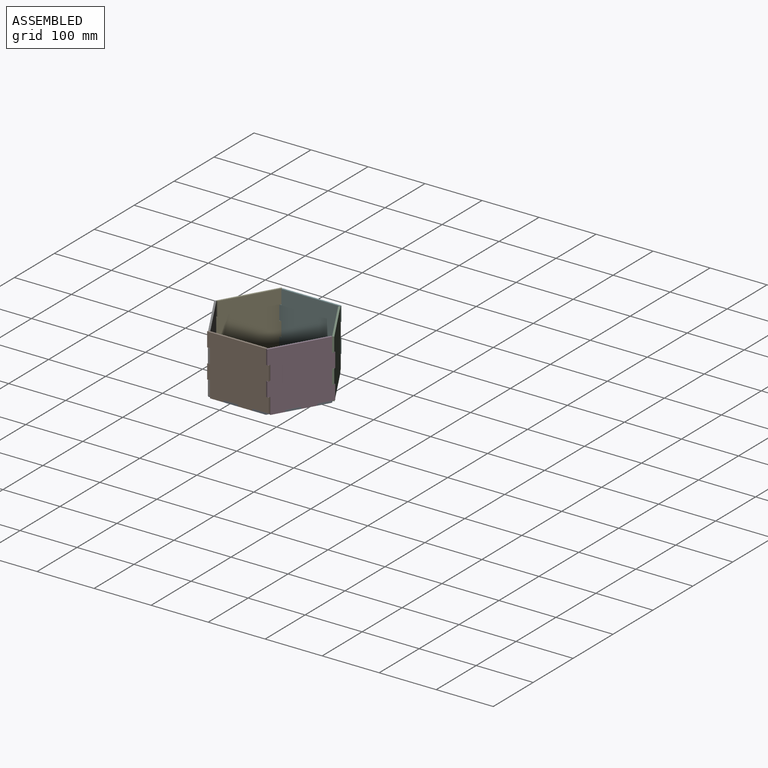
[diagram: assembled view]
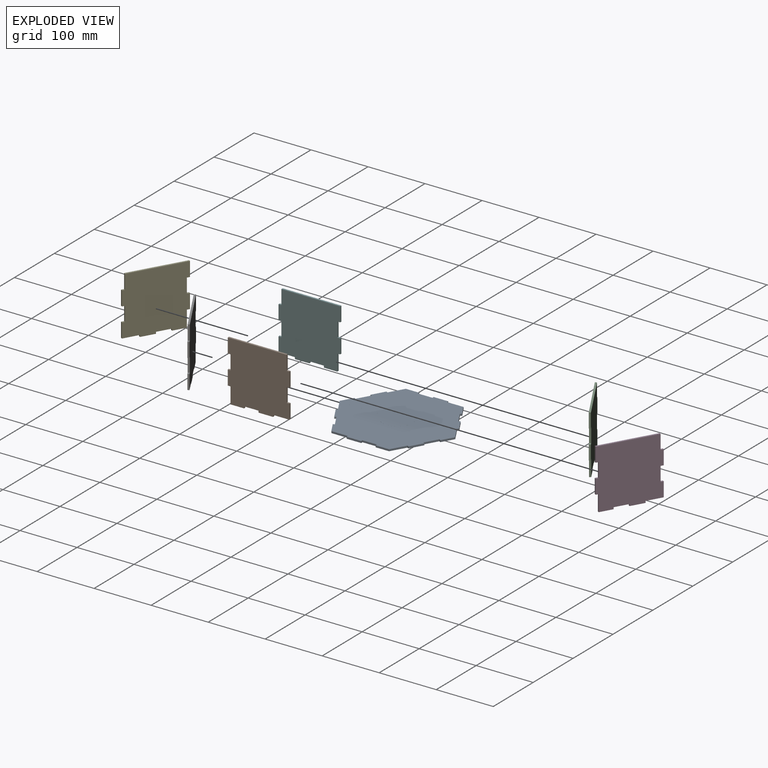
[diagram: exploded view]
GUIDED TOUR — MATED ASSEMBLY (Onshape document 285316537b2efaf649c92a9d, AutoMate assembly 285316537b2efaf649c92a9d_94ba9fda9ff590029603082b_050c9651dec1192bfa84865f_default)

This assembly has 7 components, labeled P0..P6 below (a component is one placed occurrence of a part; the same part can appear more than once), held together by 1 mate. A mate is a constraint between two components; its type names the relative motion it leaves free:
  FASTENED — locks the two components together rigidly (no relative motion).
Axis/direction vectors are unit vectors and 'through' points are millimeter coordinates, both in the assembly's world frame.

MATES
  1. FASTENED "Fastened 1": P0 <-> P5, direction (1.000, 0.002, 0.000) through (7.34, 96.08, -0.47) mm

ASSEMBLY ORDER
  1. P5 — the base component [order verified]
  2. P1 [order verified]
  3. P0 [order verified]
  4. P2 [order verified]
  5. P3 [order verified]
  6. P6 [order verified]
  7. P4 [order verified]
Order-tag legend:
  [order verified] — this step's position reverses a verified removal order: the component was checked to insert without passing through the ones already placed.

Of the 7 components, 1 carries the full construction recipe — the FeatureScript program that regenerates the part's solid from scratch; the rest are supplied as boundary geometry only.
Each toured component is shown spotlighted twice — in the assembled view, then in the exploded view, where a leader line traces a displaced component back to its assembled socket (saturated green if recipe-attached, orange if geometry-only; every other component desaturated gray) — followed by its recipe or geometry summary and the mates that hold it.
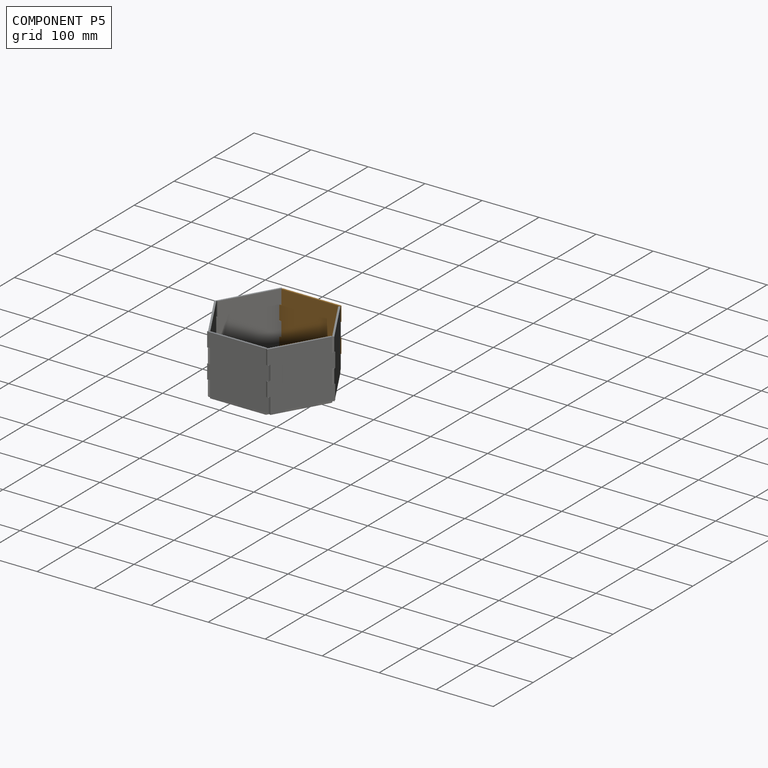
[diagram: component P5 — assembled]
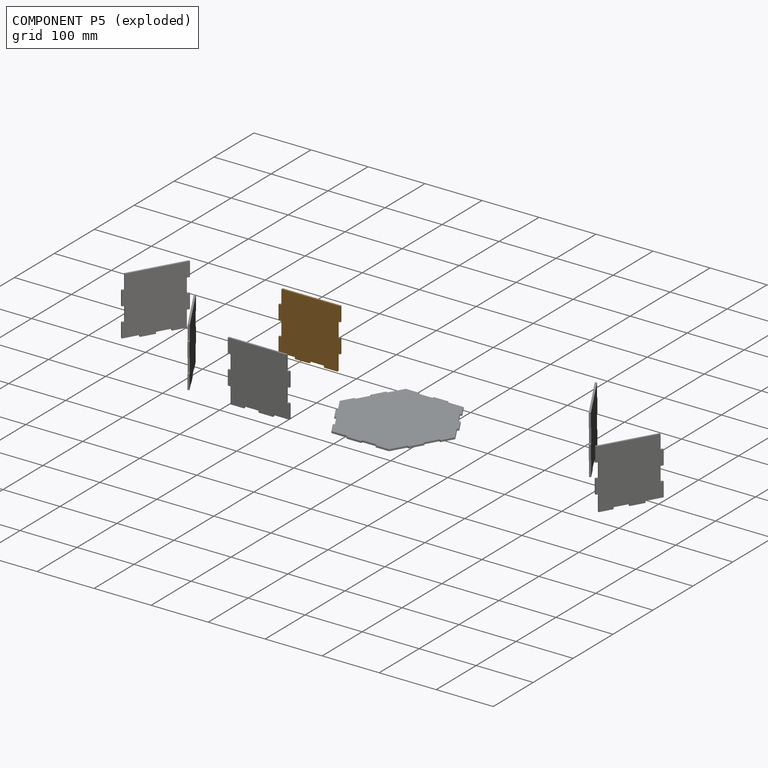
[diagram: component P5 — exploded]
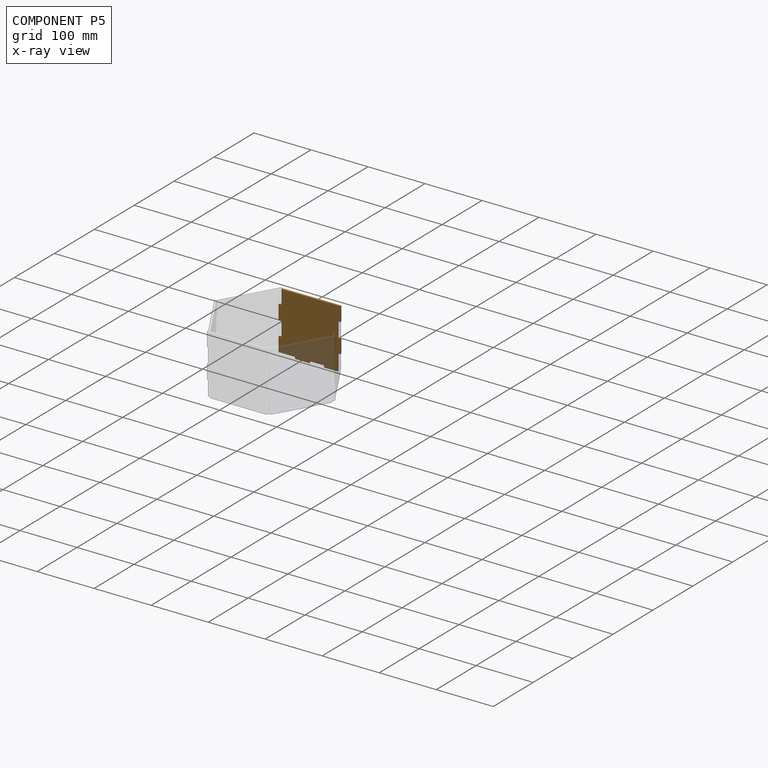
[diagram: component P5 — x-ray view]
COMPONENT P5 — geometry summary (no construction recipe available for this part):
  bounding box: 108.0 x 104.8 x 3.2 mm
  B-rep topology: 1 solid, 24 faces, 132 edges
  volume: 33719 mm^3 (94% of its bounding box)
  symmetry: mirror-symmetric across its y mid-plane
Held by: FASTENED mate "Fastened 1" to P0.
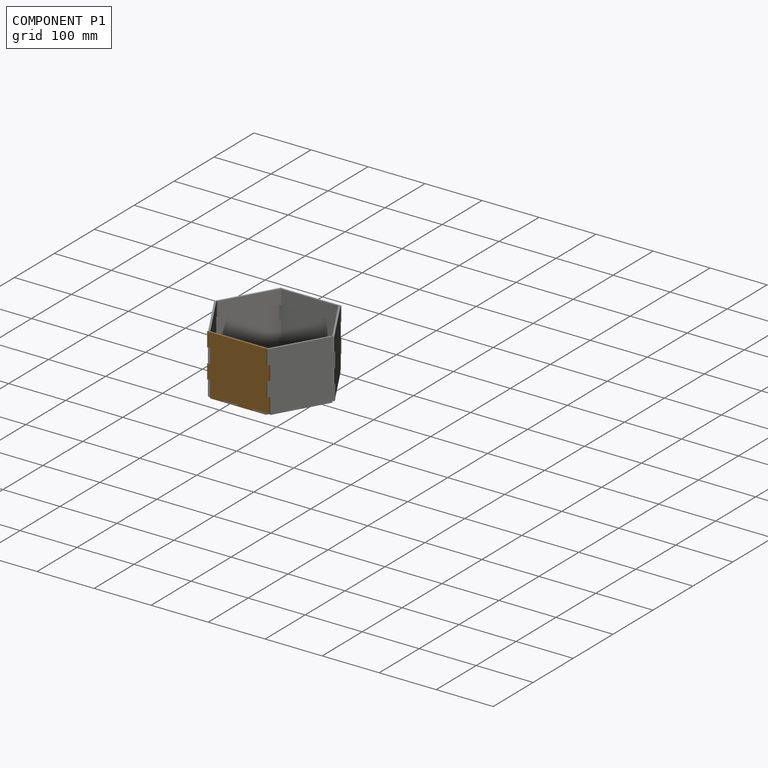
[diagram: component P1 — assembled]
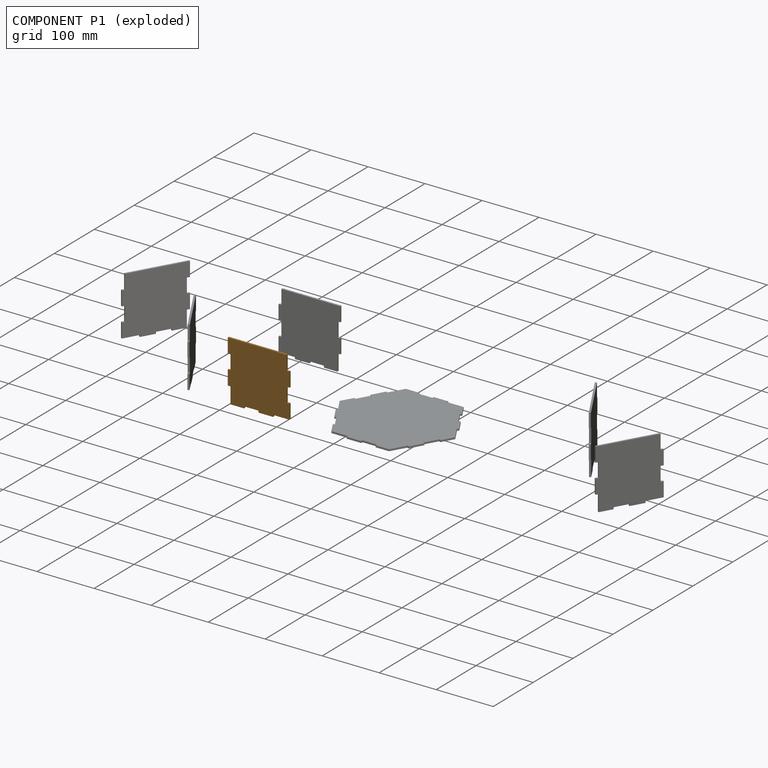
[diagram: component P1 — exploded]
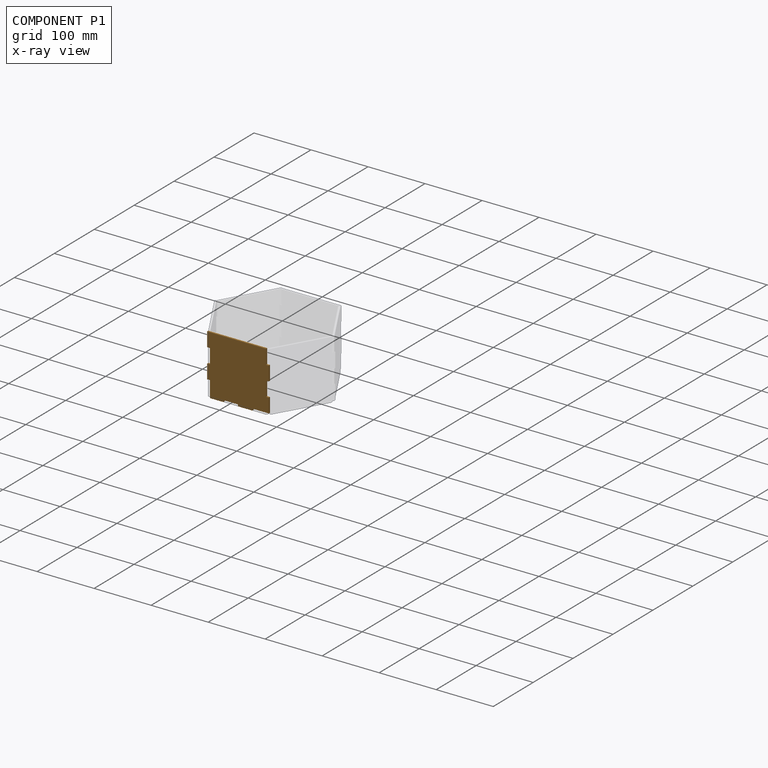
[diagram: component P1 — x-ray view]
COMPONENT P1 — geometry summary (no construction recipe available for this part):
  bounding box: 108.0 x 104.8 x 3.2 mm
  B-rep topology: 1 solid, 24 faces, 132 edges
  volume: 33719 mm^3 (94% of its bounding box)
  symmetry: mirror-symmetric across its y mid-plane
Held by: no mates (free).
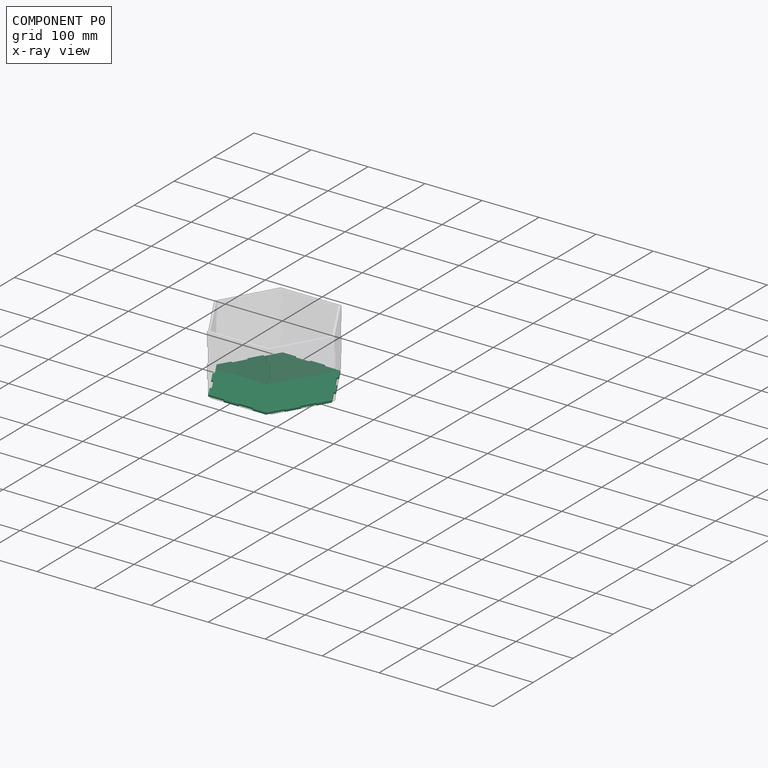
[diagram: component P0 — x-ray view]
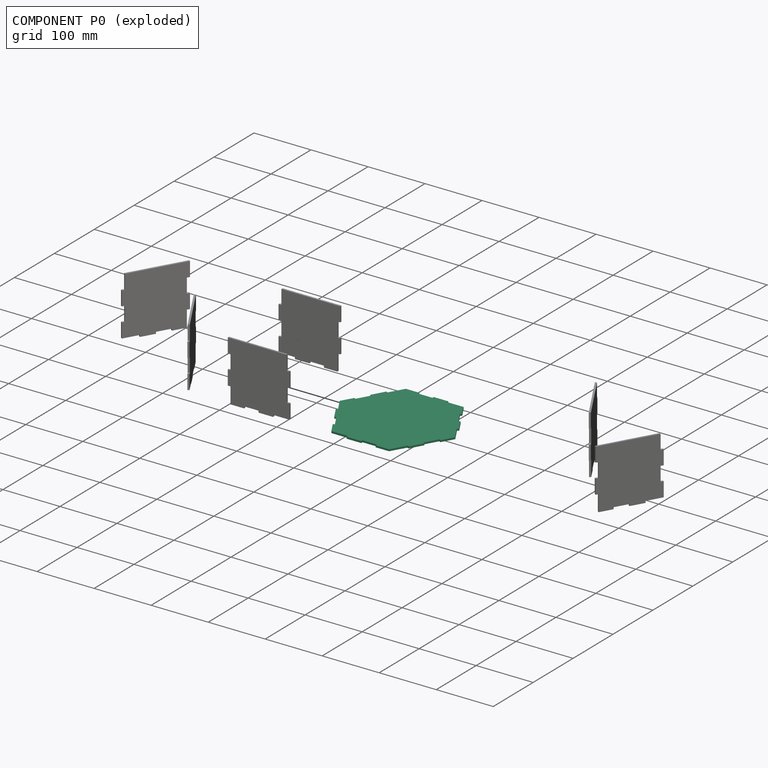
[diagram: component P0 — exploded]
COMPONENT P0 — recipe-attached (CADFS 00275172, mesh-verified: the recipe's output STEP matches this component's geometry to below the mesh-comparison resolution (tessellation chordal tolerance ~0.414 mm)).
Held by: FASTENED mate "Fastened 1" to P5.
Construction recipe (FeatureScript — the CAD program that rebuilds this solid; sketch coordinates are in the units given by the * unit suffixes, e.g. mm):

FeatureScript 1511;
import(path : "onshape/std/geometry.fs", version : "1511.0");
import(path : "onshape/std/common.fs", version : "1511.0");
const mm = millimeter;
const VERTEX = EntityType.VERTEX;
const EDGE = EntityType.EDGE;
const FACE = EntityType.FACE;
const BODY = EntityType.BODY;
function v(x, y){return vector(x, y);}
function OD(order){return orderDisambiguation(order);}
function OSD(set){return originalSetDisambiguation(set);}
function TD(topology){return topologyDisambiguation(topology);}
function TDD(query){return trueDependencyDisambiguation(query);}
function sQuery(a, b, c) {return sketchEntityQuery(a, b, c);}

annotation { "Feature Type Name" : "Feature", "Feature Type Description" : "" }
export const myFeature = defineFeature(function(context is Context, id is Id, definition is map)
    precondition{}
    {
        {
            var Q0;
            Q0=qCreatedBy(makeId("Top.planeOp"),FACE);
            var sketch = newSketch(context, id + "F0", { "sketchPlane" : qUnion([Q0])});
            skCircle(sketch, "E0.cCircle", {"center": v(0, 0) * mm, "radius": 87.99 * mm, "construction": true});
            skLineSegment(sketch, "E0.0", {"start": v(50.64, 88.08) * mm, "end": v(101.6, 0.19) * mm});
            skLineSegment(sketch, "E0.1", {"start": v(101.6, 0.19) * mm, "end": v(50.96, -87.9) * mm});
            skLineSegment(sketch, "E0.2", {"start": v(50.96, -87.9) * mm, "end": v(-50.64, -88.08) * mm});
            skLineSegment(sketch, "E0.3", {"start": v(-50.64, -88.08) * mm, "end": v(-101.6, -0.19) * mm});
            skLineSegment(sketch, "E0.4", {"start": v(-101.6, -0.19) * mm, "end": v(-50.96, 87.9) * mm});
            skLineSegment(sketch, "E0.5", {"start": v(-50.96, 87.9) * mm, "end": v(50.64, 88.08) * mm});
            skPoint(sketch, "E0.0.midPoint", {"position": v(76.12, 44.13) * mm});
            skLineSegment(sketch, "E1.0", {"start": v(-103.44, 2.99) * mm, "end": v(-47.12, 100.94) * mm, "construction": true});
            skLineSegment(sketch, "E2", {"start": v(-103.44, 2.99) * mm, "end": v(-91.7, 23.42) * mm});
            skLineSegment(sketch, "E3", {"start": v(-91.7, 23.42) * mm, "end": v(-88.94, 21.83) * mm});
            skLineSegment(sketch, "E4", {"start": v(-76.28, 43.85) * mm, "end": v(-79.03, 45.44) * mm});
            skLineSegment(sketch, "E5", {"start": v(-79.03, 45.44) * mm, "end": v(-66.37, 67.46) * mm});
            skLineSegment(sketch, "E6", {"start": v(-66.37, 67.46) * mm, "end": v(-63.62, 65.88) * mm});
            skLineSegment(sketch, "E7.1.0", {"start": v(-66.13, -67.7) * mm, "end": v(-63.38, -66.1) * mm});
            skLineSegment(sketch, "E7.1.1", {"start": v(-54.3, -88.09) * mm, "end": v(-66.13, -67.7) * mm});
            skLineSegment(sketch, "E7.1.3", {"start": v(-76.12, -44.13) * mm, "end": v(-78.87, -45.73) * mm});
            skLineSegment(sketch, "E7.1.4", {"start": v(-78.87, -45.73) * mm, "end": v(-91.6, -23.75) * mm});
            skLineSegment(sketch, "E7.1.5", {"start": v(-91.6, -23.75) * mm, "end": v(-88.86, -22.16) * mm});
            skLineSegment(sketch, "E7.2.0", {"start": v(25.57, -91.12) * mm, "end": v(25.56, -87.94) * mm});
            skLineSegment(sketch, "E7.2.1", {"start": v(49.13, -91.07) * mm, "end": v(25.57, -91.12) * mm});
            skLineSegment(sketch, "E7.2.3", {"start": v(0.16, -87.99) * mm, "end": v(0.17, -91.16) * mm});
            skLineSegment(sketch, "E7.2.4", {"start": v(0.17, -91.16) * mm, "end": v(-25.23, -91.2) * mm});
            skLineSegment(sketch, "E7.2.5", {"start": v(-25.23, -91.2) * mm, "end": v(-25.24, -88.03) * mm});
            skLineSegment(sketch, "E7.3.0", {"start": v(91.7, -23.42) * mm, "end": v(88.94, -21.83) * mm});
            skLineSegment(sketch, "E7.3.1", {"start": v(103.44, -2.99) * mm, "end": v(91.7, -23.42) * mm});
            skLineSegment(sketch, "E7.3.3", {"start": v(76.28, -43.85) * mm, "end": v(79.03, -45.44) * mm});
            skLineSegment(sketch, "E7.3.4", {"start": v(79.03, -45.44) * mm, "end": v(66.37, -67.46) * mm});
            skLineSegment(sketch, "E7.3.5", {"start": v(66.37, -67.46) * mm, "end": v(63.62, -65.88) * mm});
            skLineSegment(sketch, "E7.4.0", {"start": v(66.13, 67.7) * mm, "end": v(63.38, 66.1) * mm});
            skLineSegment(sketch, "E7.4.1", {"start": v(54.3, 88.09) * mm, "end": v(66.13, 67.7) * mm});
            skLineSegment(sketch, "E7.4.3", {"start": v(76.12, 44.13) * mm, "end": v(78.87, 45.73) * mm});
            skLineSegment(sketch, "E7.4.4", {"start": v(78.87, 45.73) * mm, "end": v(91.6, 23.75) * mm});
            skLineSegment(sketch, "E7.4.5", {"start": v(91.6, 23.75) * mm, "end": v(88.86, 22.16) * mm});
            skLineSegment(sketch, "E7.5.0", {"start": v(-25.57, 91.12) * mm, "end": v(-25.56, 87.94) * mm});
            skLineSegment(sketch, "E7.5.1", {"start": v(-49.13, 91.07) * mm, "end": v(-25.57, 91.12) * mm});
            skLineSegment(sketch, "E7.5.3", {"start": v(-0.16, 87.99) * mm, "end": v(-0.17, 91.16) * mm});
            skLineSegment(sketch, "E7.5.4", {"start": v(-0.17, 91.16) * mm, "end": v(25.23, 91.2) * mm});
            skLineSegment(sketch, "E7.5.5", {"start": v(25.23, 91.2) * mm, "end": v(25.24, 88.03) * mm});
            skLineSegment(sketch, "E8", {"start": v(-101.6, -0.19) * mm, "end": v(-103.44, 2.99) * mm});
            skPoint(sketch, "E9.orphan", {"position": v(-104.35, 1.4) * mm});
            skLineSegment(sketch, "E10.1.0", {"start": v(-50.64, -88.08) * mm, "end": v(-54.3, -88.09) * mm});
            skLineSegment(sketch, "E10.2.0", {"start": v(50.96, -87.9) * mm, "end": v(49.13, -91.07) * mm});
            skLineSegment(sketch, "E10.3.0", {"start": v(101.6, 0.19) * mm, "end": v(103.44, -2.99) * mm});
            skLineSegment(sketch, "E10.4.0", {"start": v(50.64, 88.08) * mm, "end": v(54.3, 88.09) * mm});
            skLineSegment(sketch, "E10.5.0", {"start": v(-50.96, 87.9) * mm, "end": v(-49.13, 91.07) * mm});
            skPoint(sketch, "E11.orphan", {"position": v(-50.97, 91.07) * mm});
            skPoint(sketch, "E12.orphan", {"position": v(104.35, -1.4) * mm});
            skPoint(sketch, "E13.orphan", {"position": v(50.97, -91.07) * mm});
            skPoint(sketch, "E14.orphan", {"position": v(-53.39, -89.67) * mm});
            skSolve(sketch);
        }
        {
            var Q0;
            {var subQ18=sQuery(id+"F0.wireOp",EDGE,"E0.0");var subQ26=makeQuery(id+"F0.imprint","INTERSECT",VERTEX,{"derivedFrom":[subQ18,sQuery(id+"F0.wireOp",EDGE,"E7.4.0")]});Q0=makeQuery(id+"F0.imprint","IMPRINT",FACE,{"disambiguationData":[TD([[makeQuery(id+"F0.imprint","IMPRINT",EDGE,{"disambiguationData":[TD([[subQ26,-1.0]])],"derivedFrom":subQ18}),-1.0]])]});}
            var Q1;
            {var subQ0=sQuery(id+"F0.wireOp",EDGE,"E4");Q1=makeQuery(id+"F0.imprint","IMPRINT",FACE,{"disambiguationData":[TD([[makeQuery(id+"F0.imprint","IMPRINT",EDGE,{"derivedFrom":subQ0}),-1.0]])]});}
            var Q2;
            Q2=makeQuery(id+"F0.imprint","IMPRINT",FACE,{"disambiguationData":[TD([[makeQuery(id+"F0.imprint","IMPRINT",EDGE,{"derivedFrom":sQuery(id+"F0.wireOp",EDGE,"E2")}),-1.0]])]});
            var Q3;
            {var subQ2=sQuery(id+"F0.wireOp",EDGE,"E7.5.0");Q3=makeQuery(id+"F0.imprint","IMPRINT",FACE,{"disambiguationData":[TD([[makeQuery(id+"F0.imprint","IMPRINT",EDGE,{"derivedFrom":subQ2}),-1.0]])]});}
            var Q4;
            {var subQ0=sQuery(id+"F0.wireOp",EDGE,"E7.5.3");Q4=makeQuery(id+"F0.imprint","IMPRINT",FACE,{"disambiguationData":[TD([[makeQuery(id+"F0.imprint","IMPRINT",EDGE,{"derivedFrom":subQ0}),-1.0]])]});}
            var Q5;
            {var subQ2=sQuery(id+"F0.wireOp",EDGE,"E7.4.0");Q5=makeQuery(id+"F0.imprint","IMPRINT",FACE,{"disambiguationData":[TD([[makeQuery(id+"F0.imprint","IMPRINT",EDGE,{"derivedFrom":subQ2}),-1.0]])]});}
            var Q6;
            {var subQ0=sQuery(id+"F0.wireOp",EDGE,"E7.4.3");Q6=makeQuery(id+"F0.imprint","IMPRINT",FACE,{"disambiguationData":[TD([[makeQuery(id+"F0.imprint","IMPRINT",EDGE,{"derivedFrom":subQ0}),-1.0]])]});}
            var Q7;
            {var subQ2=sQuery(id+"F0.wireOp",EDGE,"E7.3.0");Q7=makeQuery(id+"F0.imprint","IMPRINT",FACE,{"disambiguationData":[TD([[makeQuery(id+"F0.imprint","IMPRINT",EDGE,{"derivedFrom":subQ2}),-1.0]])]});}
            var Q8;
            {var subQ0=sQuery(id+"F0.wireOp",EDGE,"E7.3.3");Q8=makeQuery(id+"F0.imprint","IMPRINT",FACE,{"disambiguationData":[TD([[makeQuery(id+"F0.imprint","IMPRINT",EDGE,{"derivedFrom":subQ0}),-1.0]])]});}
            var Q9;
            {var subQ2=sQuery(id+"F0.wireOp",EDGE,"E7.2.0");Q9=makeQuery(id+"F0.imprint","IMPRINT",FACE,{"disambiguationData":[TD([[makeQuery(id+"F0.imprint","IMPRINT",EDGE,{"derivedFrom":subQ2}),-1.0]])]});}
            var Q10;
            {var subQ0=sQuery(id+"F0.wireOp",EDGE,"E7.2.3");Q10=makeQuery(id+"F0.imprint","IMPRINT",FACE,{"disambiguationData":[TD([[makeQuery(id+"F0.imprint","IMPRINT",EDGE,{"derivedFrom":subQ0}),-1.0]])]});}
            var Q11;
            {var subQ2=sQuery(id+"F0.wireOp",EDGE,"E7.1.0");Q11=makeQuery(id+"F0.imprint","IMPRINT",FACE,{"disambiguationData":[TD([[makeQuery(id+"F0.imprint","IMPRINT",EDGE,{"derivedFrom":subQ2}),-1.0]])]});}
            var Q12;
            {var subQ0=sQuery(id+"F0.wireOp",EDGE,"E7.1.3");Q12=makeQuery(id+"F0.imprint","IMPRINT",FACE,{"disambiguationData":[TD([[makeQuery(id+"F0.imprint","IMPRINT",EDGE,{"derivedFrom":subQ0}),-1.0]])]});}
            extrude(context, id + "F1", {"entities" : qUnion([Q0, Q1, Q2, Q3, Q4, Q5, Q6, Q7, Q8, Q9, Q10, Q11, Q12]), "depth" : 3.17 * mm});
        }
        {
            var Q0;
            Q0=makeQuery(id+"F1.opExtrude","CAP_FACE",FACE,{"disambiguationData":[OSD([sQuery(id+"F0.wireOp",EDGE,"E0.0"),sQuery(id+"F0.wireOp",EDGE,"E0.1"),sQuery(id+"F0.wireOp",EDGE,"E0.2"),sQuery(id+"F0.wireOp",EDGE,"E0.3"),sQuery(id+"F0.wireOp",EDGE,"E0.4"),sQuery(id+"F0.wireOp",EDGE,"E0.5"),sQuery(id+"F0.wireOp",EDGE,"E2"),sQuery(id+"F0.wireOp",EDGE,"E3"),sQuery(id+"F0.wireOp",EDGE,"E4"),sQuery(id+"F0.wireOp",EDGE,"E5"),sQuery(id+"F0.wireOp",EDGE,"E6"),sQuery(id+"F0.wireOp",EDGE,"E7.1.0"),sQuery(id+"F0.wireOp",EDGE,"E7.1.1"),sQuery(id+"F0.wireOp",EDGE,"E7.1.3"),sQuery(id+"F0.wireOp",EDGE,"E7.1.4"),sQuery(id+"F0.wireOp",EDGE,"E7.1.5"),sQuery(id+"F0.wireOp",EDGE,"E7.2.0"),sQuery(id+"F0.wireOp",EDGE,"E7.2.1"),sQuery(id+"F0.wireOp",EDGE,"E7.2.3"),sQuery(id+"F0.wireOp",EDGE,"E7.2.4"),sQuery(id+"F0.wireOp",EDGE,"E7.2.5"),sQuery(id+"F0.wireOp",EDGE,"E7.3.0"),sQuery(id+"F0.wireOp",EDGE,"E7.3.1"),sQuery(id+"F0.wireOp",EDGE,"E7.3.3"),sQuery(id+"F0.wireOp",EDGE,"E7.3.4"),sQuery(id+"F0.wireOp",EDGE,"E7.3.5"),sQuery(id+"F0.wireOp",EDGE,"E7.4.0"),sQuery(id+"F0.wireOp",EDGE,"E7.4.1"),sQuery(id+"F0.wireOp",EDGE,"E7.4.3"),sQuery(id+"F0.wireOp",EDGE,"E7.4.4"),sQuery(id+"F0.wireOp",EDGE,"E7.4.5"),sQuery(id+"F0.wireOp",EDGE,"E7.5.0"),sQuery(id+"F0.wireOp",EDGE,"E7.5.1"),sQuery(id+"F0.wireOp",EDGE,"E7.5.3"),sQuery(id+"F0.wireOp",EDGE,"E7.5.4"),sQuery(id+"F0.wireOp",EDGE,"E7.5.5"),sQuery(id+"F0.wireOp",EDGE,"E8"),sQuery(id+"F0.wireOp",EDGE,"E10.1.0"),sQuery(id+"F0.wireOp",EDGE,"E10.2.0"),sQuery(id+"F0.wireOp",EDGE,"E10.3.0"),sQuery(id+"F0.wireOp",EDGE,"E10.4.0"),sQuery(id+"F0.wireOp",EDGE,"E10.5.0")])],"isStart":false});
            var sketch = newSketch(context, id + "F2", { "sketchPlane" : qUnion([Q0])});
            skCircle(sketch, "E15", {"center": v(0, 0) * mm, "radius": 25.62 * mm});
            skSolve(sketch);
        }
        {
            var Q0;
            Q0=makeQuery(id+"F2.imprint","IMPRINT",FACE,{"disambiguationData":[TD([[makeQuery(id+"F2.imprint","IMPRINT",EDGE,{"derivedFrom":sQuery(id+"F2.wireOp",EDGE,"E15")}),1.0]])]});
            extrude(context, id + "F3", {"entities" : qUnion([Q0]), "operationType" : NewBodyOperationType.ADD, "depth" : 0.03 * mm});
        }
    });
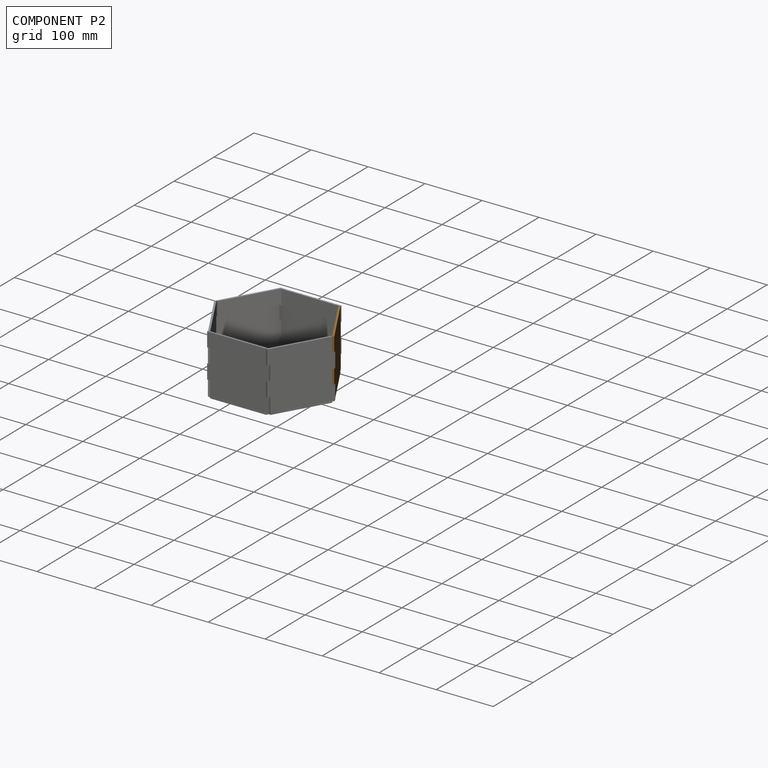
[diagram: component P2 — assembled]
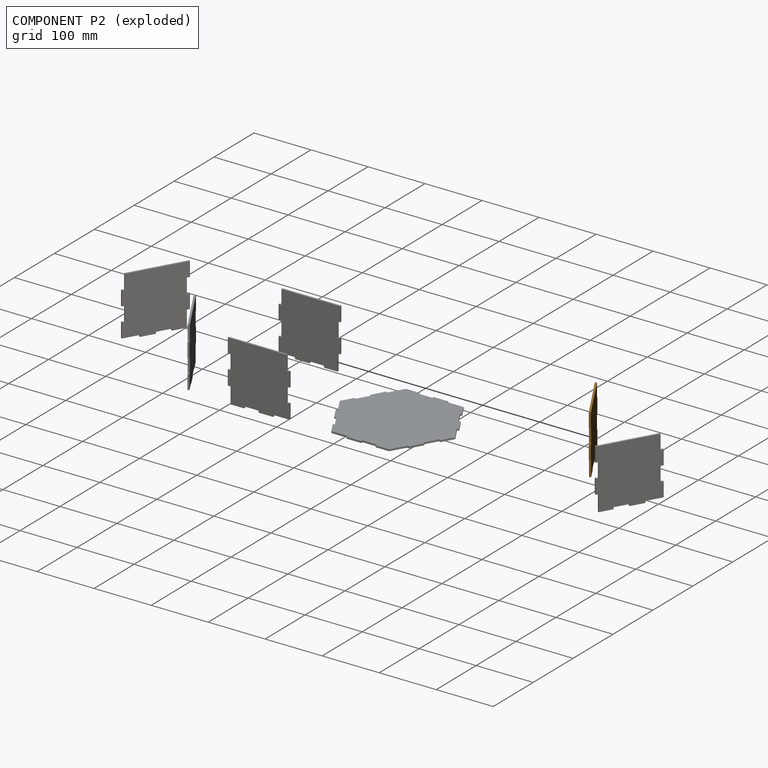
[diagram: component P2 — exploded]
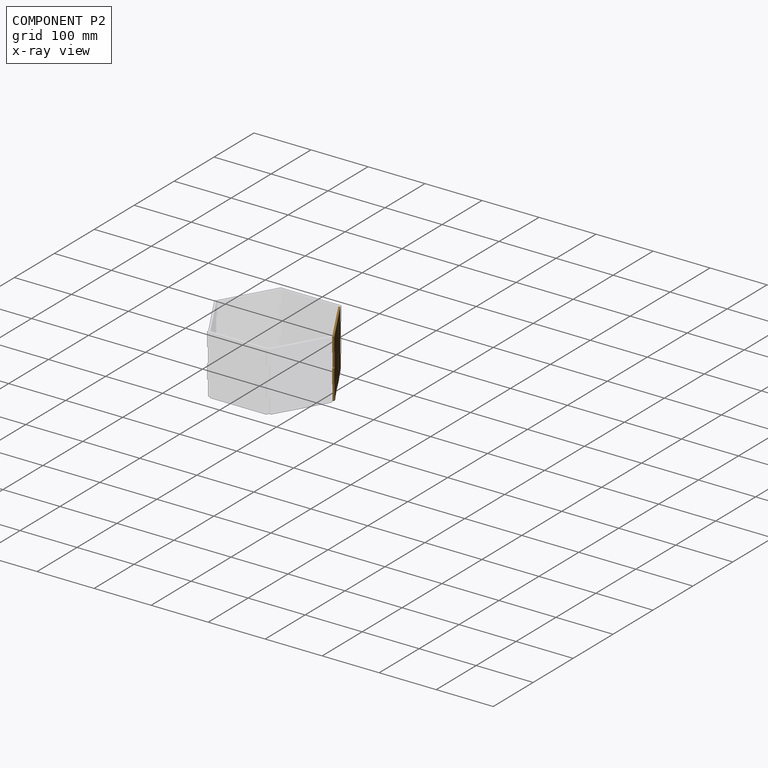
[diagram: component P2 — x-ray view]
COMPONENT P2 — geometry summary (no construction recipe available for this part):
  bounding box: 108.0 x 104.8 x 3.2 mm
  B-rep topology: 1 solid, 24 faces, 132 edges
  volume: 33719 mm^3 (94% of its bounding box)
  symmetry: mirror-symmetric across its y mid-plane
Held by: no mates (free).
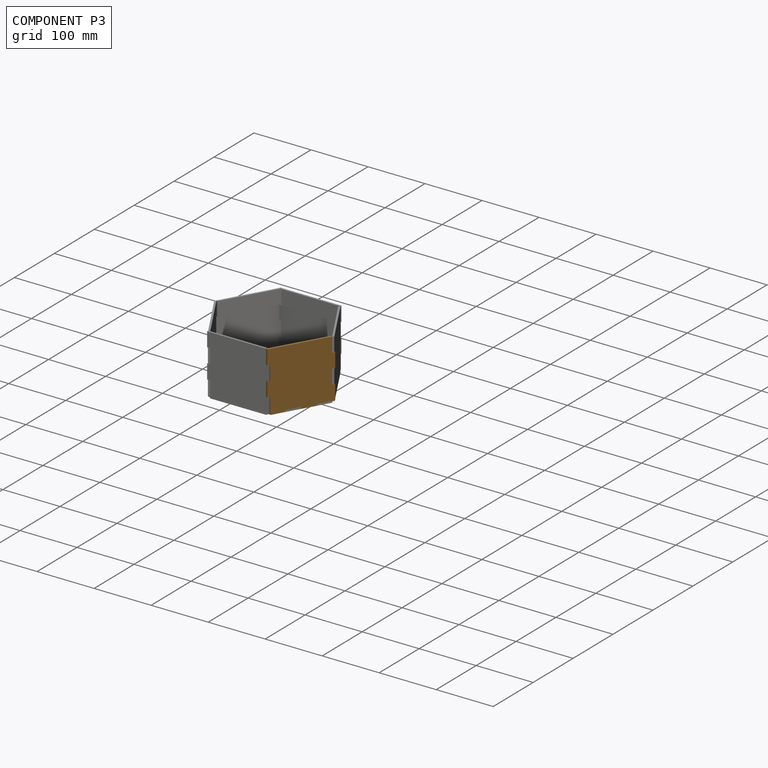
[diagram: component P3 — assembled]
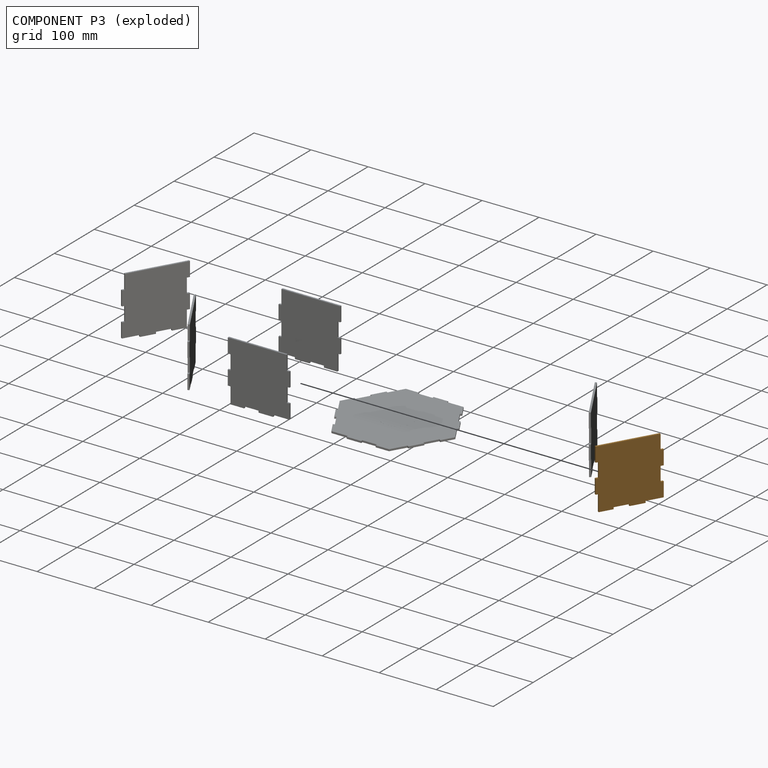
[diagram: component P3 — exploded]
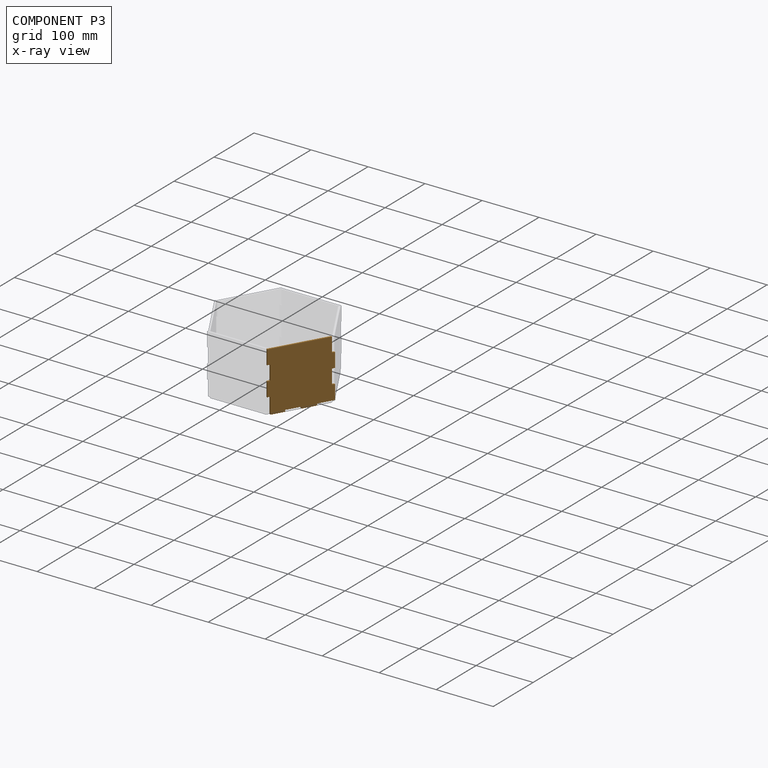
[diagram: component P3 — x-ray view]
COMPONENT P3 — geometry summary (no construction recipe available for this part):
  bounding box: 108.0 x 104.8 x 3.2 mm
  B-rep topology: 1 solid, 24 faces, 132 edges
  volume: 33719 mm^3 (94% of its bounding box)
  symmetry: mirror-symmetric across its y mid-plane
Held by: no mates (free).
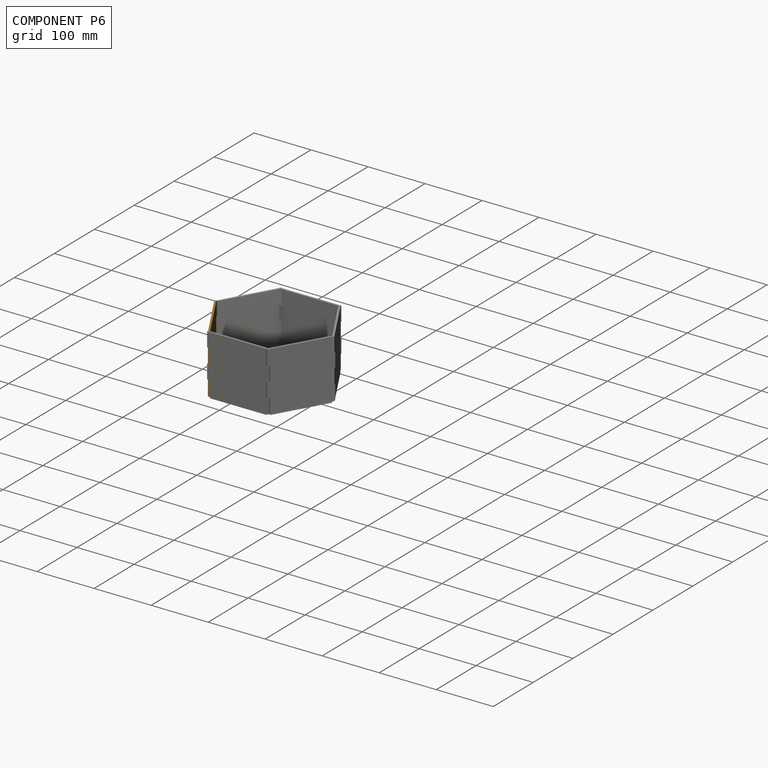
[diagram: component P6 — assembled]
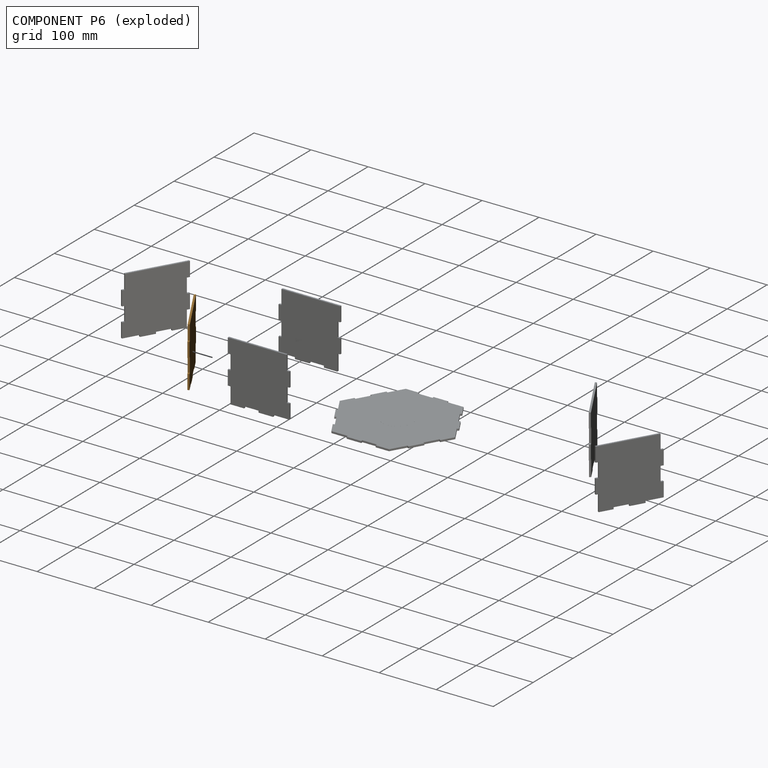
[diagram: component P6 — exploded]
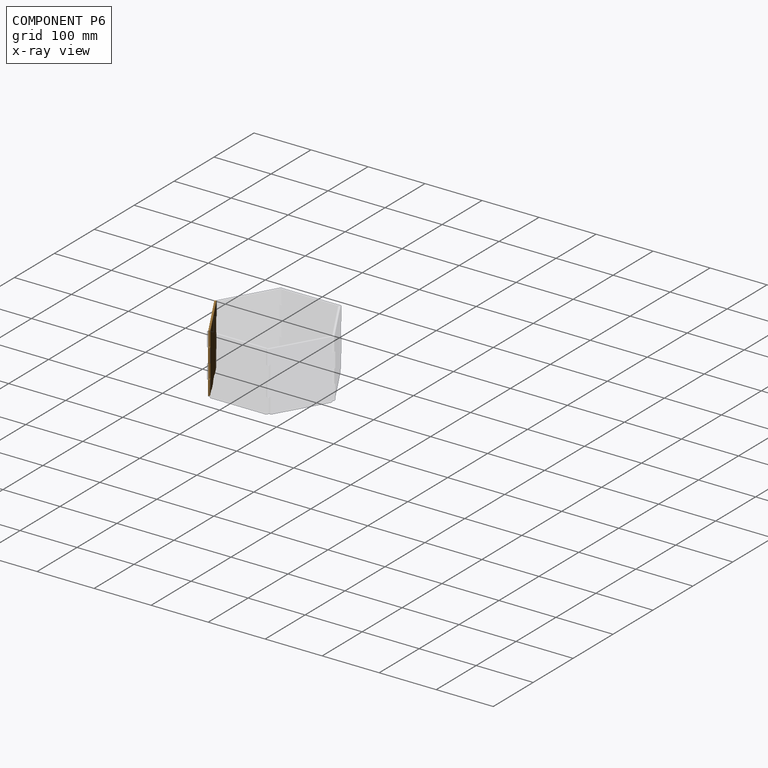
[diagram: component P6 — x-ray view]
COMPONENT P6 — geometry summary (no construction recipe available for this part):
  bounding box: 108.0 x 104.8 x 3.2 mm
  B-rep topology: 1 solid, 24 faces, 132 edges
  volume: 33719 mm^3 (94% of its bounding box)
  symmetry: mirror-symmetric across its y mid-plane
Held by: no mates (free).
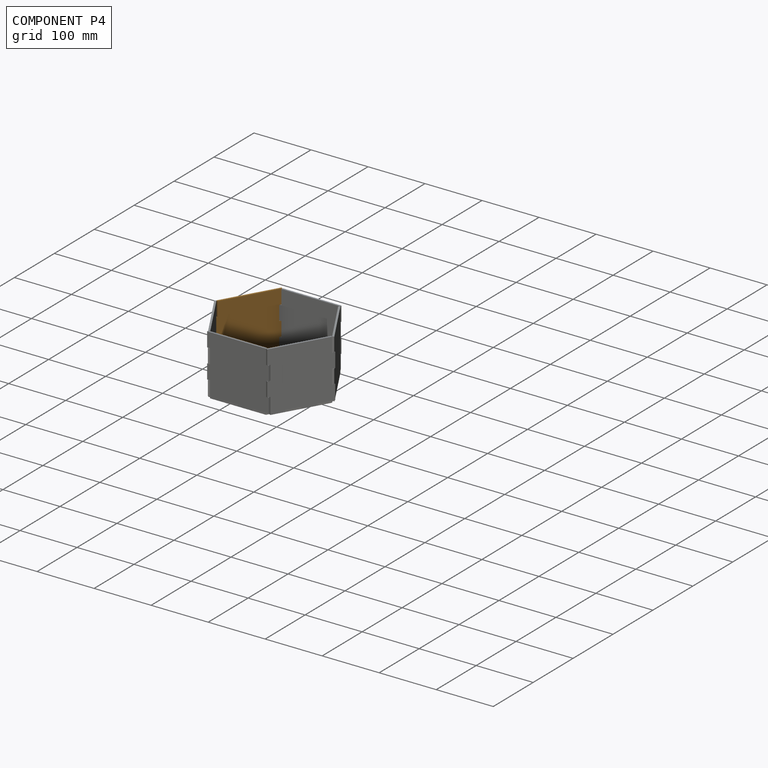
[diagram: component P4 — assembled]
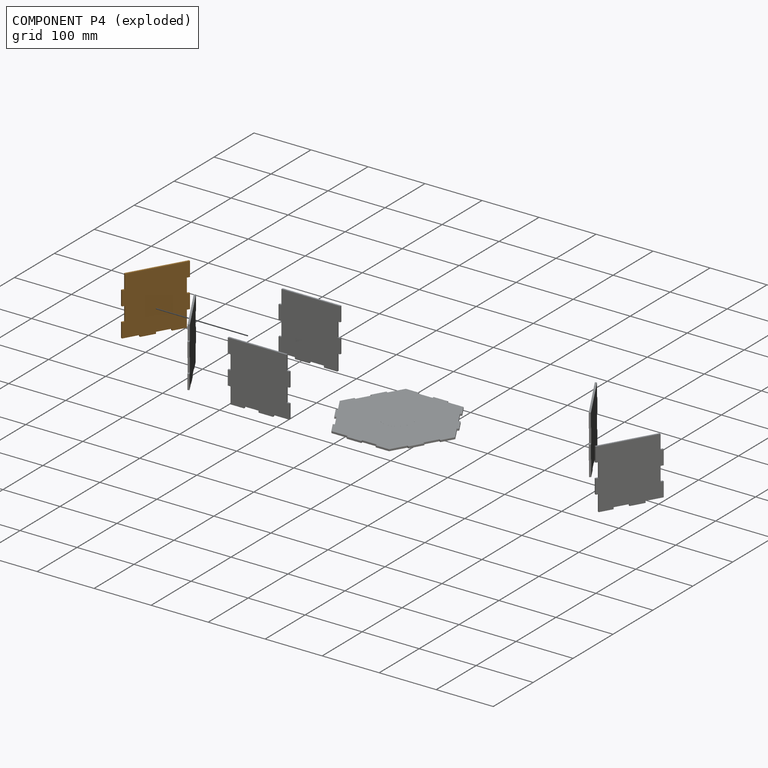
[diagram: component P4 — exploded]
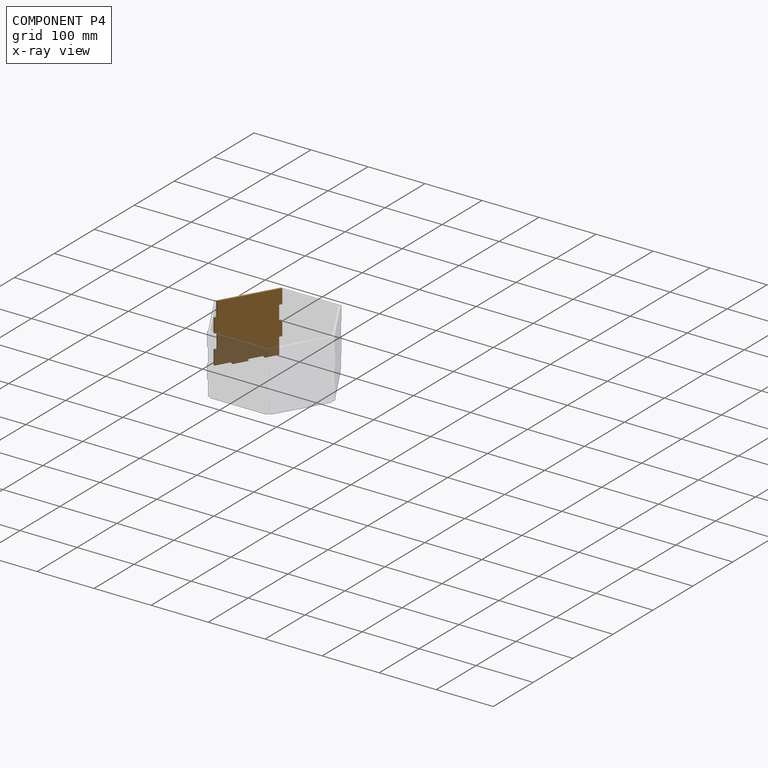
[diagram: component P4 — x-ray view]
COMPONENT P4 — geometry summary (no construction recipe available for this part):
  bounding box: 108.0 x 104.8 x 3.2 mm
  B-rep topology: 1 solid, 24 faces, 132 edges
  volume: 33719 mm^3 (94% of its bounding box)
  symmetry: mirror-symmetric across its y mid-plane
Held by: no mates (free).
PROVENANCE & LICENSES
Assembly (occurrences, transforms, mates, per-part STEP geometry): AutoMate dataset, Zenodo record 7776208, CC0.
Construction recipes: CADFS (HuggingFace VladPyatov/CADFS, CC-BY-4.0, layered over the ABC dataset), FeatureScript reconstruction programs keyed by ABC model id.
Join: ABC meta listings map ABC model id -> Onshape documentId; within a shared document, parts are matched by geometric signature (bounding-box dims + volume at 0.1% relative tolerance, exact B-rep face/solid counts).
Verification: 1 of this assembly's 7 components carries a recipe attachment, and every attachment is mesh-verified: the CADFS STEP and the AutoMate member STEP were compared as meshes in their shared local frame (symmetric sampled-point-to-mesh distance); worst across the 1 attachment: below the mesh-comparison resolution (tessellation chordal tolerance ~0.414 mm) on a 276 mm part.
Renders: orthographic iso camera (az 35 / el 25); the floor grid conveys scale (grid pitch printed in each image; no ruler). In the exploded view each component is displaced by its stored offset vector: the offsets alone carry the explosion direction (mate normal/axis signs are not orientation cues and do not encode it), and separation distances are assigned per mate-chain, not proportionally to assembly-order depth.
